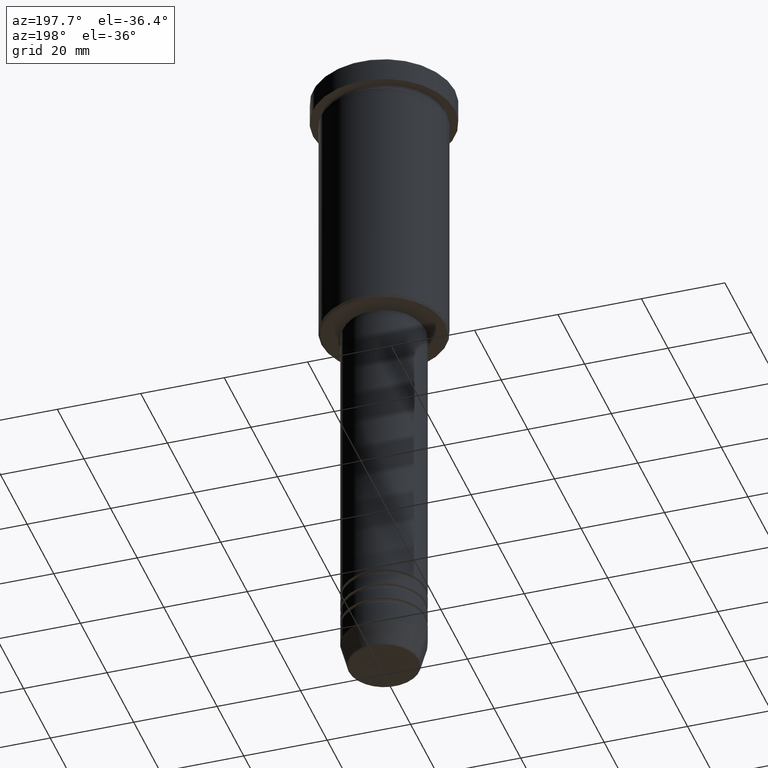
[diagram: clean part render]
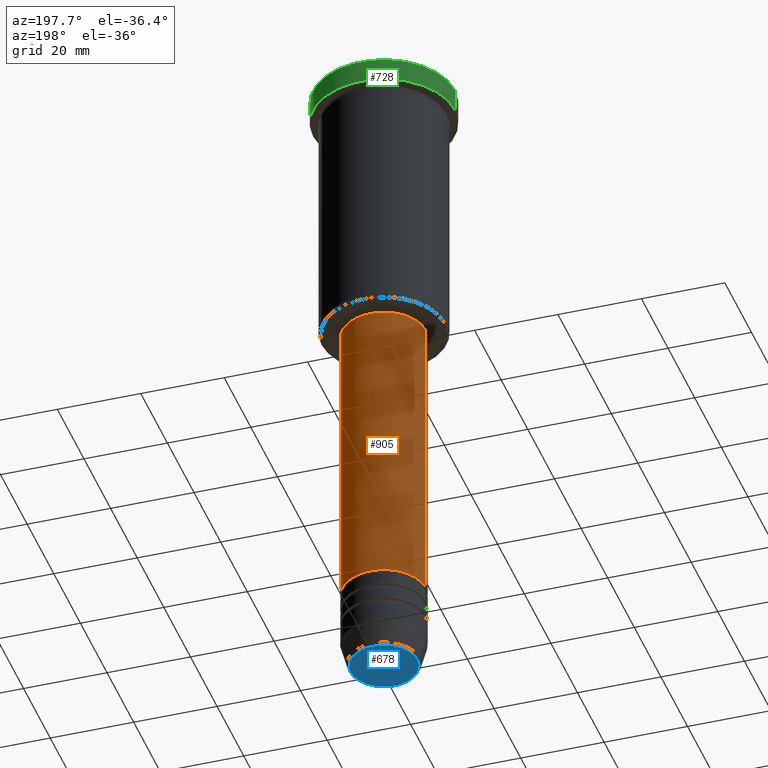
[diagram: same view with three faces highlighted in distinct colors, each labeled with its STEP entity id]
A machine part, auxiliary view with three faces highlighted in distinct colors.
Their STEP definitions:

[orange] entity #905 — the highlighted cylindrical surface (partial cylindrical patch) has radius 10 mm, axis along (-0, -0, 1).
#27 = VECTOR ( 'NONE', #890, 1000.000000000000000 ) ;
#41 = ORIENTED_EDGE ( 'NONE', *, *, #226, .T. ) ;
#60 = ORIENTED_EDGE ( 'NONE', *, *, #451, .F. ) ;
#63 = CARTESIAN_POINT ( 'NONE',  ( 0.000000000000000000, 0.000000000000000000, -67.00000000000002842 ) ) ;
#165 = CARTESIAN_POINT ( 'NONE',  ( -10.00000000000000000, 1.224646799147353256E-15, 0.000000000000000000 ) ) ;
#226 = EDGE_CURVE ( 'NONE', #432, #396, #732, .T. ) ;
#328 = EDGE_CURVE ( 'NONE', #432, #849, #1140, .T. ) ;
#337 = DIRECTION ( 'NONE',  ( -0.000000000000000000, -0.000000000000000000, 1.000000000000000000 ) ) ;
#396 = VERTEX_POINT ( 'NONE', #974 ) ;
#432 = VERTEX_POINT ( 'NONE', #771 ) ;
#436 = CIRCLE ( 'NONE', #459, 9.999999999999998224 ) ;
#438 = CYLINDRICAL_SURFACE ( 'NONE', #517, 10.00000000000000000 ) ;
#451 = EDGE_CURVE ( 'NONE', #849, #1029, #436, .T. ) ;
#459 = AXIS2_PLACEMENT_3D ( 'NONE', #63, #337, #868 ) ;
#492 = CARTESIAN_POINT ( 'NONE',  ( 10.00000000000000000, 0.000000000000000000, 0.000000000000000000 ) ) ;
#517 = AXIS2_PLACEMENT_3D ( 'NONE', #704, #817, #1010 ) ;
#531 = AXIS2_PLACEMENT_3D ( 'NONE', #852, #741, #1121 ) ;
#533 = LINE ( 'NONE', #165, #27 ) ;
#554 = DIRECTION ( 'NONE',  ( -0.000000000000000000, -0.000000000000000000, 1.000000000000000000 ) ) ;
#704 = CARTESIAN_POINT ( 'NONE',  ( 0.000000000000000000, 0.000000000000000000, 0.000000000000000000 ) ) ;
#732 = CIRCLE ( 'NONE', #531, 10.00000000000000178 ) ;
#741 = DIRECTION ( 'NONE',  ( -0.000000000000000000, -0.000000000000000000, 1.000000000000000000 ) ) ;
#771 = CARTESIAN_POINT ( 'NONE',  ( 10.00000000000000178, 0.000000000000000000, -139.9999999999999716 ) ) ;
#817 = DIRECTION ( 'NONE',  ( -0.000000000000000000, -0.000000000000000000, 1.000000000000000000 ) ) ;
#849 = VERTEX_POINT ( 'NONE', #1074 ) ;
#852 = CARTESIAN_POINT ( 'NONE',  ( 0.000000000000000000, 0.000000000000000000, -139.9999999999999716 ) ) ;
#868 = DIRECTION ( 'NONE',  ( 1.000000000000000000, 0.000000000000000000, 0.000000000000000000 ) ) ;
#890 = DIRECTION ( 'NONE',  ( -0.000000000000000000, -0.000000000000000000, 1.000000000000000000 ) ) ;
#893 = ORIENTED_EDGE ( 'NONE', *, *, #985, .T. ) ;
#905 = ADVANCED_FACE ( 'NONE', ( #961 ), #438, .T. ) ;
#960 = CARTESIAN_POINT ( 'NONE',  ( -9.999999999999998224, 1.224646799147353256E-15, -67.00000000000002842 ) ) ;
#961 = FACE_OUTER_BOUND ( 'NONE', #1035, .T. ) ;
#974 = CARTESIAN_POINT ( 'NONE',  ( -10.00000000000000178, 1.224646799147353454E-15, -139.9999999999999716 ) ) ;
#978 = VECTOR ( 'NONE', #554, 1000.000000000000000 ) ;
#985 = EDGE_CURVE ( 'NONE', #396, #1029, #533, .T. ) ;
#1010 = DIRECTION ( 'NONE',  ( 1.000000000000000000, 0.000000000000000000, 0.000000000000000000 ) ) ;
#1029 = VERTEX_POINT ( 'NONE', #960 ) ;
#1035 = EDGE_LOOP ( 'NONE', ( #41, #893, #60, #1046 ) ) ;
#1046 = ORIENTED_EDGE ( 'NONE', *, *, #328, .F. ) ;
#1074 = CARTESIAN_POINT ( 'NONE',  ( 9.999999999999998224, 0.000000000000000000, -67.00000000000002842 ) ) ;
#1121 = DIRECTION ( 'NONE',  ( 1.000000000000000000, 0.000000000000000000, 0.000000000000000000 ) ) ;
#1140 = LINE ( 'NONE', #492, #978 ) ;

[blue] entity #678 — the highlighted planar face has unit normal (0, -0, 1).
#48 = ORIENTED_EDGE ( 'NONE', *, *, #1037, .T. ) ;
#113 = CARTESIAN_POINT ( 'NONE',  ( 0.000000000000000000, 0.000000000000000000, -160.0000000000000284 ) ) ;
#130 = DIRECTION ( 'NONE',  ( 0.000000000000000000, 0.000000000000000000, -1.000000000000000000 ) ) ;
#214 = CARTESIAN_POINT ( 'NONE',  ( 0.000000000000000000, 0.000000000000000000, -160.0000000000000284 ) ) ;
#216 = ORIENTED_EDGE ( 'NONE', *, *, #1129, .T. ) ;
#324 = AXIS2_PLACEMENT_3D ( 'NONE', #113, #649, #1043 ) ;
#419 = CIRCLE ( 'NONE', #739, 8.008641351423781529 ) ;
#598 = AXIS2_PLACEMENT_3D ( 'NONE', #966, #774, #1067 ) ;
#647 = EDGE_LOOP ( 'NONE', ( #48, #216 ) ) ;
#649 = DIRECTION ( 'NONE',  ( 0.000000000000000000, 0.000000000000000000, -1.000000000000000000 ) ) ;
#651 = DIRECTION ( 'NONE',  ( 1.000000000000000000, 0.000000000000000000, 0.000000000000000000 ) ) ;
#678 = ADVANCED_FACE ( 'NONE', ( #1052 ), #957, .F. ) ;
#739 = AXIS2_PLACEMENT_3D ( 'NONE', #214, #130, #651 ) ;
#745 = CARTESIAN_POINT ( 'NONE',  ( -8.008641351423781529, 1.010348648938493172E-15, -160.0000000000000284 ) ) ;
#774 = DIRECTION ( 'NONE',  ( 0.000000000000000000, -0.000000000000000000, 1.000000000000000000 ) ) ;
#791 = VERTEX_POINT ( 'NONE', #857 ) ;
#826 = CIRCLE ( 'NONE', #324, 8.008641351423781529 ) ;
#857 = CARTESIAN_POINT ( 'NONE',  ( 8.008641351423781529, 0.000000000000000000, -160.0000000000000284 ) ) ;
#929 = VERTEX_POINT ( 'NONE', #745 ) ;
#957 = PLANE ( 'NONE',  #598 ) ;
#966 = CARTESIAN_POINT ( 'NONE',  ( 0.000000000000000000, 0.000000000000000000, -160.0000000000000284 ) ) ;
#1037 = EDGE_CURVE ( 'NONE', #791, #929, #826, .T. ) ;
#1043 = DIRECTION ( 'NONE',  ( 1.000000000000000000, 0.000000000000000000, 0.000000000000000000 ) ) ;
#1052 = FACE_OUTER_BOUND ( 'NONE', #647, .T. ) ;
#1067 = DIRECTION ( 'NONE',  ( 1.000000000000000000, 0.000000000000000000, 0.000000000000000000 ) ) ;
#1129 = EDGE_CURVE ( 'NONE', #929, #791, #419, .T. ) ;

[green] entity #728 — the highlighted cylindrical surface (partial cylindrical patch) has radius 17 mm, axis along (-0, -0, 1).
#9 = DIRECTION ( 'NONE',  ( 1.000000000000000000, 0.000000000000000000, 0.000000000000000000 ) ) ;
#49 = CARTESIAN_POINT ( 'NONE',  ( 17.00000000000000000, 0.000000000000000000, 0.000000000000000000 ) ) ;
#65 = VECTOR ( 'NONE', #406, 1000.000000000000000 ) ;
#105 = VECTOR ( 'NONE', #583, 1000.000000000000000 ) ;
#126 = DIRECTION ( 'NONE',  ( 1.000000000000000000, 0.000000000000000000, 0.000000000000000000 ) ) ;
#147 = DIRECTION ( 'NONE',  ( 0.000000000000000000, 0.000000000000000000, -1.000000000000000000 ) ) ;
#188 = CARTESIAN_POINT ( 'NONE',  ( 17.00000000000000000, 0.000000000000000000, -5.999999999999994671 ) ) ;
#208 = VERTEX_POINT ( 'NONE', #827 ) ;
#231 = CARTESIAN_POINT ( 'NONE',  ( -17.00000000000000000, 2.081899558550500280E-15, 0.000000000000000000 ) ) ;
#259 = ORIENTED_EDGE ( 'NONE', *, *, #724, .F. ) ;
#300 = ORIENTED_EDGE ( 'NONE', *, *, #412, .T. ) ;
#383 = AXIS2_PLACEMENT_3D ( 'NONE', #902, #821, #9 ) ;
#406 = DIRECTION ( 'NONE',  ( -0.000000000000000000, -0.000000000000000000, 1.000000000000000000 ) ) ;
#412 = EDGE_CURVE ( 'NONE', #208, #1180, #1079, .T. ) ;
#417 = CIRCLE ( 'NONE', #1155, 17.00000000000000000 ) ;
#420 = ORIENTED_EDGE ( 'NONE', *, *, #895, .T. ) ;
#421 = ORIENTED_EDGE ( 'NONE', *, *, #770, .T. ) ;
#497 = LINE ( 'NONE', #49, #65 ) ;
#515 = AXIS2_PLACEMENT_3D ( 'NONE', #983, #147, #676 ) ;
#529 = VERTEX_POINT ( 'NONE', #188 ) ;
#569 = CARTESIAN_POINT ( 'NONE',  ( 17.00000000000000000, 0.000000000000000000, -0.5000000000000213163 ) ) ;
#583 = DIRECTION ( 'NONE',  ( -0.000000000000000000, -0.000000000000000000, 1.000000000000000000 ) ) ;
#659 = VERTEX_POINT ( 'NONE', #891 ) ;
#676 = DIRECTION ( 'NONE',  ( 1.000000000000000000, 0.000000000000000000, 0.000000000000000000 ) ) ;
#724 = EDGE_CURVE ( 'NONE', #529, #1180, #497, .T. ) ;
#728 = ADVANCED_FACE ( 'NONE', ( #769 ), #828, .T. ) ;
#747 = CARTESIAN_POINT ( 'NONE',  ( 0.000000000000000000, 0.000000000000000000, -5.999999999999994671 ) ) ;
#769 = FACE_OUTER_BOUND ( 'NONE', #963, .T. ) ;
#770 = EDGE_CURVE ( 'NONE', #529, #659, #417, .T. ) ;
#821 = DIRECTION ( 'NONE',  ( -0.000000000000000000, -0.000000000000000000, 1.000000000000000000 ) ) ;
#827 = CARTESIAN_POINT ( 'NONE',  ( -17.00000000000000000, 2.081899558550500280E-15, -0.5000000000000213163 ) ) ;
#828 = CYLINDRICAL_SURFACE ( 'NONE', #383, 17.00000000000000000 ) ;
#891 = CARTESIAN_POINT ( 'NONE',  ( -17.00000000000000000, 2.081899558550500280E-15, -5.999999999999994671 ) ) ;
#895 = EDGE_CURVE ( 'NONE', #659, #208, #1054, .T. ) ;
#902 = CARTESIAN_POINT ( 'NONE',  ( 0.000000000000000000, 0.000000000000000000, 0.000000000000000000 ) ) ;
#963 = EDGE_LOOP ( 'NONE', ( #421, #420, #300, #259 ) ) ;
#983 = CARTESIAN_POINT ( 'NONE',  ( 0.000000000000000000, 0.000000000000000000, -0.5000000000000213163 ) ) ;
#1054 = LINE ( 'NONE', #231, #105 ) ;
#1079 = CIRCLE ( 'NONE', #515, 17.00000000000000000 ) ;
#1124 = DIRECTION ( 'NONE',  ( -0.000000000000000000, -0.000000000000000000, 1.000000000000000000 ) ) ;
#1155 = AXIS2_PLACEMENT_3D ( 'NONE', #747, #1124, #126 ) ;
#1180 = VERTEX_POINT ( 'NONE', #569 ) ;